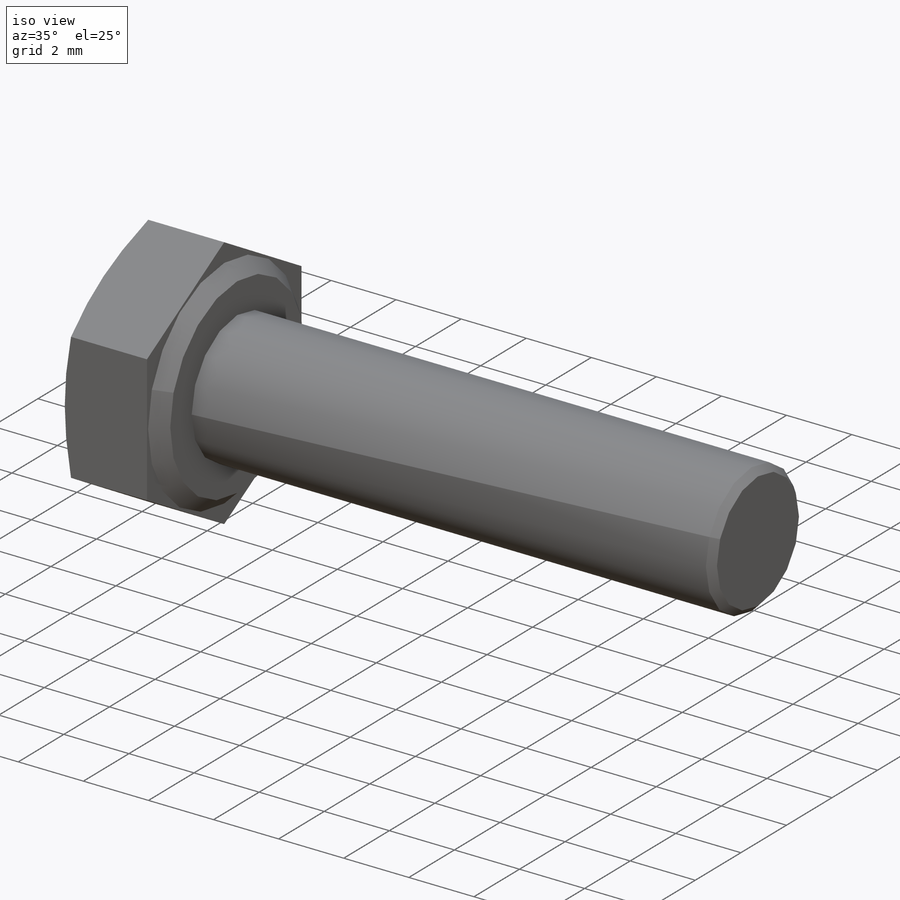
[diagram: iso view]
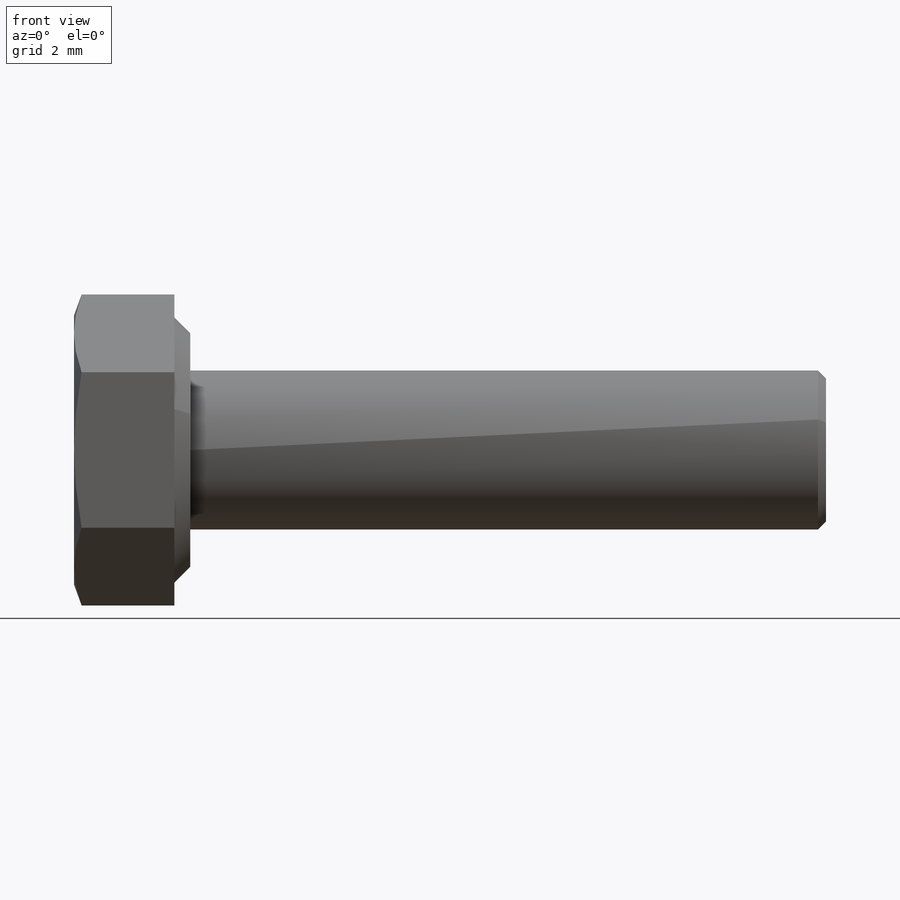
[diagram: front view]
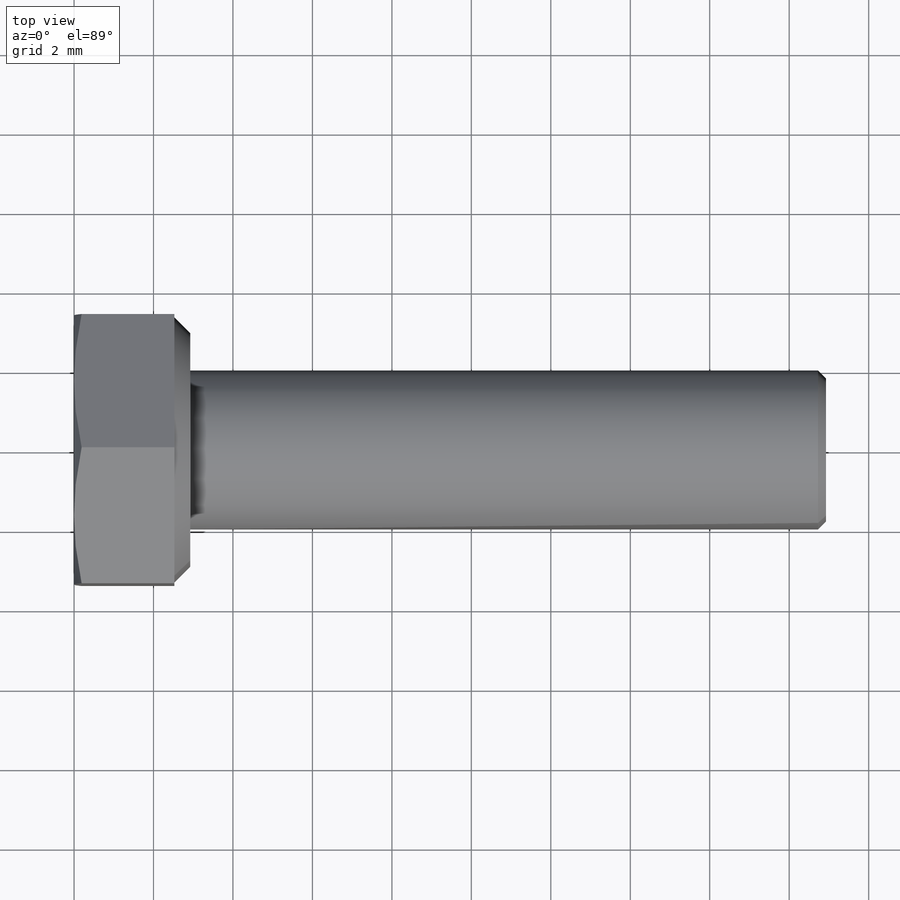
[diagram: top view]
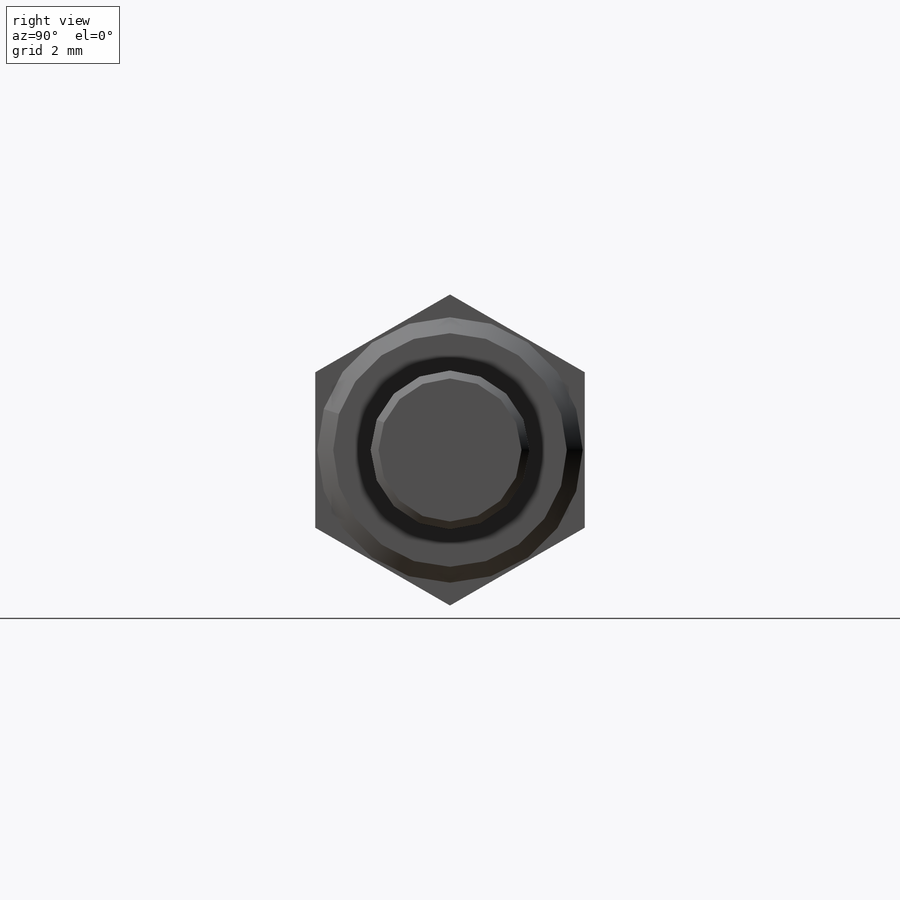
[diagram: right view]
SOLIDWORKS PART (.sldprt)
format: sldprt  version: not decoded by parser v0  size: 598,016 bytes
history: native  units: mm
features: sketch x5, cut_revolve x3, extrude x2, material x1, thread x1, chamfer x1, fillet x1, pattern_linear x1 (+13 scaffold rows collapsed)
feature tree (28):
  scaffold x13  (default folders/planes/origin — collapsed)
  material  "材质 <未指定>"
  sketch  "Sketch2"  dims[s=6.78mm]
  extrude  "BaseHead"  Depth=2.925mm k=2.925mm
  sketch  "Sketch3"  dims[c1.D1=~0.656109mm c2.D1=45.0deg c2.c=0.4mm c2.dw=11.63mm c2.Dw=5.815mm c3.Dw=5.88mm]
  cut_revolve  "BearingFace"  Angle=360deg
  sketch  "Sketch4"  dims[c1.D1=~1.154321mm c2.D1=20.0deg c2.D2=6.78mm]
  cut_revolve  "HeadChamfer"  Angle=360deg
  sketch  "Sketch5"  dims[d=4.0mm]
  extrude  "BaseBody"  [1 undecoded]
  thread  "ThreadCosmetic1"  Diameter=3.242mm l=16mm  [1 undecoded]
  chamfer  "Chamfer1"  Distance=0.2mm Angle=45deg
  fillet  "HeadFillet"  Radius=0.2mm r=0.2mm
  sketch  "Sketch6"  dims[D1=0.379mm]
  cut_revolve  "Cut-Revolve10"  Angle=360deg
  pattern_linear  "LPattern10"  Count1=35 Count2=1 Spacing1=0.4548mm Spacing2=50mm pitch=0.4548mm
decode coverage: 13 of 14 modeling features carry decoded parameters
note: ~ marks probable driven/reference dimensions
note: 2 parameter values undecoded
note: suppression state not decoded; provenance and decode notes live in map.json
